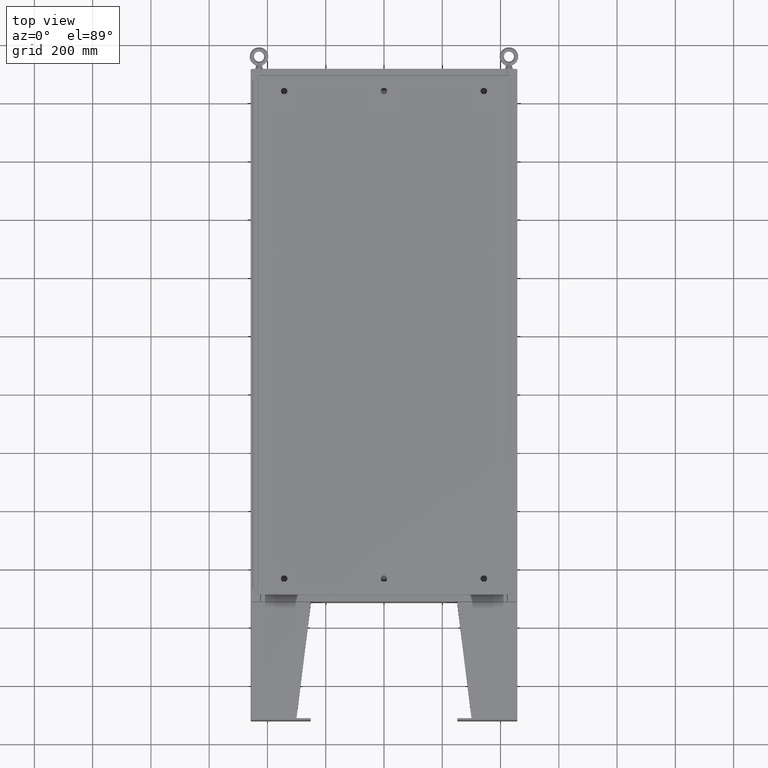
[diagram: clean part render]
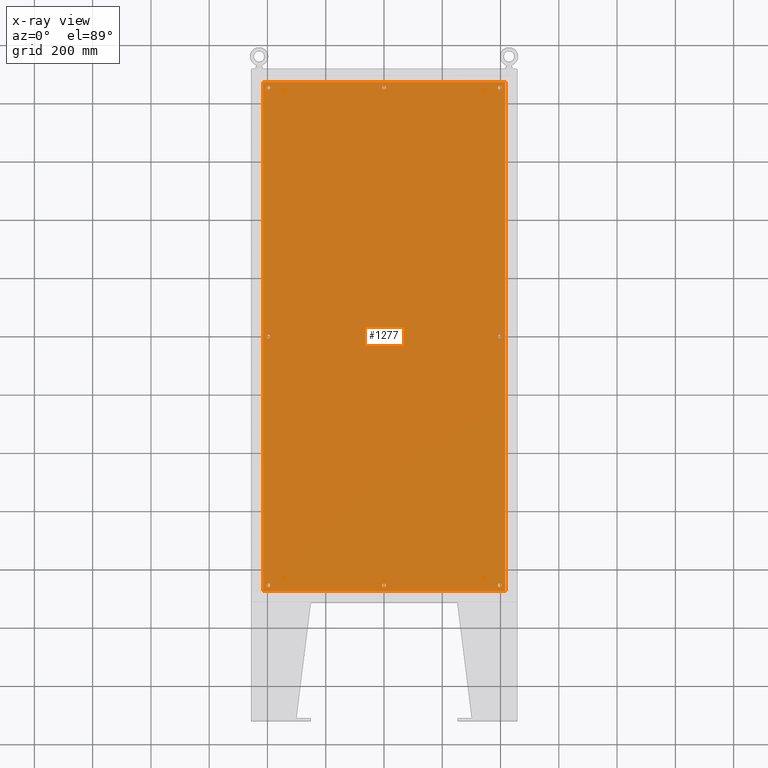
[diagram: x-ray — body ghosted, one internal face saturated and labeled with its STEP entity id]
A machine part, top view, then the same camera in x-ray: the body is ghosted and one INTERNAL B-rep face — a face not visible from any outside direction — is saturated and labeled: STEP entity #1277.
In plain terms, the highlighted planar face has unit normal (0, 0, -1).
Its self-contained STEP definition (entity closure, byte-faithful):
#70 = VECTOR ( 'NONE', #18782, 39.37007874015748100 ) ;
#311 = CIRCLE ( 'NONE', #4489, 0.2500000000000008900 ) ;
#694 = ORIENTED_EDGE ( 'NONE', *, *, #8518, .T. ) ;
#1155 = EDGE_CURVE ( 'NONE', #23579, #33029, #3163, .T. ) ;
#1277 = ADVANCED_FACE ( 'NONE', ( #23697, #52458, #9077, #65490, #50764, #36351, #21941, #7407, #63747 ), #50730, .T. ) ;
#1298 = DIRECTION ( 'NONE',  ( -1.000000000000000000, 0.0000000000000000000, 0.0000000000000000000 ) ) ;
#1308 = VERTEX_POINT ( 'NONE', #43369 ) ;
#1620 = DIRECTION ( 'NONE',  ( -0.0000000000000000000, -0.0000000000000000000, 1.000000000000000000 ) ) ;
#1848 = DIRECTION ( 'NONE',  ( -0.0000000000000000000, -0.0000000000000000000, 1.000000000000000000 ) ) ;
#2515 = ORIENTED_EDGE ( 'NONE', *, *, #37120, .T. ) ;
#2758 = CIRCLE ( 'NONE', #60711, 0.2500000000000008900 ) ;
#2787 = EDGE_CURVE ( 'NONE', #63608, #1308, #311, .T. ) ;
#2909 = CARTESIAN_POINT ( 'NONE',  ( -16.38299999999999900, -34.38300000000000300, -0.1040000000000009400 ) ) ;
#2990 = VERTEX_POINT ( 'NONE', #30539 ) ;
#3163 = CIRCLE ( 'NONE', #28610, 0.2500000000000008900 ) ;
#3190 = EDGE_CURVE ( 'NONE', #19703, #23617, #63455, .T. ) ;
#3490 = CARTESIAN_POINT ( 'NONE',  ( -15.37500000000000900, -33.62500000000000000, -0.1039999999999999800 ) ) ;
#3848 = ORIENTED_EDGE ( 'NONE', *, *, #42043, .T. ) ;
#3898 = DIRECTION ( 'NONE',  ( -1.000000000000000000, 0.0000000000000000000, 0.0000000000000000000 ) ) ;
#4059 = VERTEX_POINT ( 'NONE', #52948 ) ;
#4401 = CARTESIAN_POINT ( 'NONE',  ( -15.62500000000000900, -33.62500000000000000, -0.1039999999999999800 ) ) ;
#4489 = AXIS2_PLACEMENT_3D ( 'NONE', #31790, #64514, #64273 ) ;
#4592 = CARTESIAN_POINT ( 'NONE',  ( 15.87500000000000700, 2.997136362123522700E-015, -0.1039999999999999800 ) ) ;
#4673 = EDGE_CURVE ( 'NONE', #8976, #36304, #2758, .T. ) ;
#4709 = CARTESIAN_POINT ( 'NONE',  ( 15.37500000000000900, 33.62500000000000000, -0.1039999999999999800 ) ) ;
#5720 = CARTESIAN_POINT ( 'NONE',  ( 0.0000000000000000000, -33.62500000000000000, -0.1039999999999999800 ) ) ;
#5984 = EDGE_CURVE ( 'NONE', #26965, #12709, #40003, .T. ) ;
#6129 = CARTESIAN_POINT ( 'NONE',  ( -16.50000000000000000, -34.38300000000000300, -0.1040000000000009400 ) ) ;
#6296 = CIRCLE ( 'NONE', #11796, 0.2500000000000011700 ) ;
#6845 = AXIS2_PLACEMENT_3D ( 'NONE', #43387, #10823, #48841 ) ;
#7100 = EDGE_CURVE ( 'NONE', #4059, #15674, #66453, .T. ) ;
#7407 = FACE_BOUND ( 'NONE', #58598, .T. ) ;
#7636 = LINE ( 'NONE', #6129, #20437 ) ;
#7820 = DIRECTION ( 'NONE',  ( -0.0000000000000000000, -0.0000000000000000000, 1.000000000000000000 ) ) ;
#8518 = EDGE_CURVE ( 'NONE', #30129, #48071, #37346, .T. ) ;
#8697 = CIRCLE ( 'NONE', #6845, 0.2500000000000011700 ) ;
#8976 = VERTEX_POINT ( 'NONE', #20074 ) ;
#9077 = FACE_BOUND ( 'NONE', #58117, .T. ) ;
#10137 = CARTESIAN_POINT ( 'NONE',  ( 0.0000000000000000000, 33.62500000000000000, -0.1039999999999999800 ) ) ;
#10752 = CARTESIAN_POINT ( 'NONE',  ( -15.62500000000000900, -33.62500000000000000, -0.1039999999999999800 ) ) ;
#10823 = DIRECTION ( 'NONE',  ( -0.0000000000000000000, -0.0000000000000000000, 1.000000000000000000 ) ) ;
#11138 = DIRECTION ( 'NONE',  ( -1.000000000000000000, 0.0000000000000000000, 0.0000000000000000000 ) ) ;
#11766 = CARTESIAN_POINT ( 'NONE',  ( -0.2500000000000011700, -33.62500000000000000, -0.1039999999999999800 ) ) ;
#11796 = AXIS2_PLACEMENT_3D ( 'NONE', #5720, #43678, #11138 ) ;
#12592 = EDGE_CURVE ( 'NONE', #23617, #19703, #32644, .T. ) ;
#12709 = VERTEX_POINT ( 'NONE', #61997 ) ;
#13439 = CARTESIAN_POINT ( 'NONE',  ( -15.87500000000000700, -7.992687152332741600E-016, -0.1039999999999999800 ) ) ;
#13609 = EDGE_CURVE ( 'NONE', #65050, #48066, #40063, .T. ) ;
#14582 = DIRECTION ( 'NONE',  ( -0.0000000000000000000, -0.0000000000000000000, 1.000000000000000000 ) ) ;
#15286 = ORIENTED_EDGE ( 'NONE', *, *, #3190, .T. ) ;
#15618 = DIRECTION ( 'NONE',  ( -1.000000000000000000, 0.0000000000000000000, 0.0000000000000000000 ) ) ;
#15674 = VERTEX_POINT ( 'NONE', #50652 ) ;
#15706 = DIRECTION ( 'NONE',  ( -0.0000000000000000000, -0.0000000000000000000, 1.000000000000000000 ) ) ;
#17757 = ORIENTED_EDGE ( 'NONE', *, *, #29721, .T. ) ;
#18000 = CARTESIAN_POINT ( 'NONE',  ( -15.62500000000000500, -8.298848852119578500E-016, -0.1039999999999999800 ) ) ;
#18040 = DIRECTION ( 'NONE',  ( -1.000000000000000000, 0.0000000000000000000, 0.0000000000000000000 ) ) ;
#18782 = DIRECTION ( 'NONE',  ( 0.0000000000000000000, 1.000000000000000000, 0.0000000000000000000 ) ) ;
#19264 = ORIENTED_EDGE ( 'NONE', *, *, #63053, .F. ) ;
#19502 = AXIS2_PLACEMENT_3D ( 'NONE', #21498, #1848, #18040 ) ;
#19610 = EDGE_LOOP ( 'NONE', ( #43507, #53714 ) ) ;
#19703 = VERTEX_POINT ( 'NONE', #36072 ) ;
#20074 = CARTESIAN_POINT ( 'NONE',  ( -15.37500000000000500, -8.298848852119578500E-016, -0.1039999999999999800 ) ) ;
#20437 = VECTOR ( 'NONE', #66014, 39.37007874015748100 ) ;
#21470 = CARTESIAN_POINT ( 'NONE',  ( 15.37500000000000500, 3.027752532102206500E-015, -0.1039999999999999800 ) ) ;
#21498 = CARTESIAN_POINT ( 'NONE',  ( 15.62500000000000900, -33.62500000000000000, -0.1039999999999999800 ) ) ;
#21603 = ORIENTED_EDGE ( 'NONE', *, *, #13609, .F. ) ;
#21941 = FACE_BOUND ( 'NONE', #31119, .T. ) ;
#22030 = CIRCLE ( 'NONE', #27236, 0.2499999999999998600 ) ;
#22185 = EDGE_CURVE ( 'NONE', #15674, #4059, #57764, .T. ) ;
#22867 = EDGE_LOOP ( 'NONE', ( #40692, #38128 ) ) ;
#23579 = VERTEX_POINT ( 'NONE', #4592 ) ;
#23617 = VERTEX_POINT ( 'NONE', #3490 ) ;
#23633 = AXIS2_PLACEMENT_3D ( 'NONE', #10752, #14582, #48239 ) ;
#23697 = FACE_BOUND ( 'NONE', #45779, .T. ) ;
#23723 = VECTOR ( 'NONE', #35689, 39.37007874015748100 ) ;
#24720 = EDGE_LOOP ( 'NONE', ( #34048, #15286 ) ) ;
#24852 = CARTESIAN_POINT ( 'NONE',  ( -16.38299999999999900, 34.38300000000000300, -0.1040000000000009100 ) ) ;
#25291 = EDGE_CURVE ( 'NONE', #36304, #8976, #46277, .T. ) ;
#26023 = DIRECTION ( 'NONE',  ( -0.0000000000000000000, -0.0000000000000000000, 1.000000000000000000 ) ) ;
#26965 = VERTEX_POINT ( 'NONE', #38248 ) ;
#27025 = ORIENTED_EDGE ( 'NONE', *, *, #61450, .T. ) ;
#27052 = CARTESIAN_POINT ( 'NONE',  ( 15.62500000000000900, 33.62500000000000000, -0.1039999999999999800 ) ) ;
#27236 = AXIS2_PLACEMENT_3D ( 'NONE', #10137, #48178, #15618 ) ;
#28039 = CIRCLE ( 'NONE', #66547, 0.2500000000000008900 ) ;
#28610 = AXIS2_PLACEMENT_3D ( 'NONE', #56728, #56712, #56561 ) ;
#29721 = EDGE_CURVE ( 'NONE', #33029, #23579, #28039, .T. ) ;
#29983 = CARTESIAN_POINT ( 'NONE',  ( 16.38299999999999600, -34.38300000000000300, -0.1040000000000009100 ) ) ;
#30128 = EDGE_CURVE ( 'NONE', #12709, #26965, #22030, .T. ) ;
#30129 = VERTEX_POINT ( 'NONE', #4709 ) ;
#30298 = VERTEX_POINT ( 'NONE', #11766 ) ;
#30539 = CARTESIAN_POINT ( 'NONE',  ( 0.2500000000000011700, -33.62500000000000000, -0.1039999999999999800 ) ) ;
#30604 = DIRECTION ( 'NONE',  ( -0.0000000000000000000, -0.0000000000000000000, 1.000000000000000000 ) ) ;
#30631 = ORIENTED_EDGE ( 'NONE', *, *, #66869, .T. ) ;
#31009 = LINE ( 'NONE', #31044, #58209 ) ;
#31044 = CARTESIAN_POINT ( 'NONE',  ( -16.38299999999999900, 34.38300000000000300, -0.1040000000000009100 ) ) ;
#31119 = EDGE_LOOP ( 'NONE', ( #3848, #694 ) ) ;
#31790 = CARTESIAN_POINT ( 'NONE',  ( -15.62500000000001100, 33.62500000000000000, -0.1039999999999999800 ) ) ;
#32376 = CIRCLE ( 'NONE', #56746, 0.2499999999999987000 ) ;
#32500 = DIRECTION ( 'NONE',  ( -1.000000000000000000, 0.0000000000000000000, 0.0000000000000000000 ) ) ;
#32644 = CIRCLE ( 'NONE', #23633, 0.2499999999999987000 ) ;
#33029 = VERTEX_POINT ( 'NONE', #21470 ) ;
#33172 = CARTESIAN_POINT ( 'NONE',  ( 15.87500000000000700, 33.62500000000000000, -0.1039999999999999800 ) ) ;
#33734 = ORIENTED_EDGE ( 'NONE', *, *, #2787, .T. ) ;
#34048 = ORIENTED_EDGE ( 'NONE', *, *, #12592, .T. ) ;
#34283 = CARTESIAN_POINT ( 'NONE',  ( 15.62500000000000500, 2.997136362123522700E-015, -0.1039999999999999800 ) ) ;
#34485 = ORIENTED_EDGE ( 'NONE', *, *, #25291, .T. ) ;
#35048 = CIRCLE ( 'NONE', #67405, 0.2500000000000008900 ) ;
#35602 = ORIENTED_EDGE ( 'NONE', *, *, #1155, .T. ) ;
#35689 = DIRECTION ( 'NONE',  ( -1.000000000000000000, -0.0000000000000000000, -0.0000000000000000000 ) ) ;
#36072 = CARTESIAN_POINT ( 'NONE',  ( -15.87500000000000700, -33.62500000000000000, -0.1039999999999999800 ) ) ;
#36304 = VERTEX_POINT ( 'NONE', #13439 ) ;
#36351 = FACE_BOUND ( 'NONE', #22867, .T. ) ;
#37120 = EDGE_CURVE ( 'NONE', #30298, #2990, #6296, .T. ) ;
#37346 = CIRCLE ( 'NONE', #41507, 0.2499999999999987000 ) ;
#38128 = ORIENTED_EDGE ( 'NONE', *, *, #7100, .T. ) ;
#38248 = CARTESIAN_POINT ( 'NONE',  ( 0.2499999999999998600, 33.62500000000000000, -0.1039999999999999800 ) ) ;
#38259 = DIRECTION ( 'NONE',  ( -0.0000000000000000000, -0.0000000000000000000, 1.000000000000000000 ) ) ;
#38583 = CARTESIAN_POINT ( 'NONE',  ( -15.87500000000001100, 33.62500000000000000, -0.1039999999999999800 ) ) ;
#39674 = DIRECTION ( 'NONE',  ( -1.000000000000000000, 0.0000000000000000000, 0.0000000000000000000 ) ) ;
#40003 = CIRCLE ( 'NONE', #47448, 0.2499999999999998600 ) ;
#40063 = LINE ( 'NONE', #51666, #70 ) ;
#40692 = ORIENTED_EDGE ( 'NONE', *, *, #22185, .T. ) ;
#41295 = ORIENTED_EDGE ( 'NONE', *, *, #4673, .T. ) ;
#41507 = AXIS2_PLACEMENT_3D ( 'NONE', #70269, #15706, #69520 ) ;
#41719 = ORIENTED_EDGE ( 'NONE', *, *, #45680, .F. ) ;
#41817 = DIRECTION ( 'NONE',  ( -0.0000000000000000000, -0.0000000000000000000, 1.000000000000000000 ) ) ;
#41877 = DIRECTION ( 'NONE',  ( 0.0000000000000000000, -1.000000000000000000, 0.0000000000000000000 ) ) ;
#42043 = EDGE_CURVE ( 'NONE', #48071, #30129, #32376, .T. ) ;
#43369 = CARTESIAN_POINT ( 'NONE',  ( -15.37500000000000900, 33.62500000000000000, -0.1039999999999999800 ) ) ;
#43387 = CARTESIAN_POINT ( 'NONE',  ( 0.0000000000000000000, -33.62500000000000000, -0.1039999999999999800 ) ) ;
#43507 = ORIENTED_EDGE ( 'NONE', *, *, #5984, .T. ) ;
#43678 = DIRECTION ( 'NONE',  ( -0.0000000000000000000, -0.0000000000000000000, 1.000000000000000000 ) ) ;
#44578 = CARTESIAN_POINT ( 'NONE',  ( 0.0000000000000000000, 0.0000000000000000000, -0.1039999999999999800 ) ) ;
#44905 = EDGE_LOOP ( 'NONE', ( #19264, #41719, #62249, #21603 ) ) ;
#45680 = EDGE_CURVE ( 'NONE', #66105, #54518, #31009, .T. ) ;
#45688 = CARTESIAN_POINT ( 'NONE',  ( 0.0000000000000000000, 33.62500000000000000, -0.1039999999999999800 ) ) ;
#45779 = EDGE_LOOP ( 'NONE', ( #30631, #2515 ) ) ;
#46277 = CIRCLE ( 'NONE', #46884, 0.2500000000000008900 ) ;
#46662 = DIRECTION ( 'NONE',  ( -0.0000000000000000000, -0.0000000000000000000, 1.000000000000000000 ) ) ;
#46884 = AXIS2_PLACEMENT_3D ( 'NONE', #70771, #38259, #57903 ) ;
#47448 = AXIS2_PLACEMENT_3D ( 'NONE', #45688, #41817, #69633 ) ;
#48066 = VERTEX_POINT ( 'NONE', #65894 ) ;
#48071 = VERTEX_POINT ( 'NONE', #33172 ) ;
#48178 = DIRECTION ( 'NONE',  ( -0.0000000000000000000, -0.0000000000000000000, 1.000000000000000000 ) ) ;
#48239 = DIRECTION ( 'NONE',  ( -1.000000000000000000, 0.0000000000000000000, 0.0000000000000000000 ) ) ;
#48841 = DIRECTION ( 'NONE',  ( -1.000000000000000000, 0.0000000000000000000, 0.0000000000000000000 ) ) ;
#50652 = CARTESIAN_POINT ( 'NONE',  ( 15.87500000000000700, -33.62500000000000000, -0.1039999999999999800 ) ) ;
#50730 = PLANE ( 'NONE',  #68915 ) ;
#50764 = FACE_BOUND ( 'NONE', #24720, .T. ) ;
#51651 = DIRECTION ( 'NONE',  ( -1.000000000000000000, 0.0000000000000000000, -0.0000000000000000000 ) ) ;
#51666 = CARTESIAN_POINT ( 'NONE',  ( 16.38299999999999600, -34.38300000000000300, -0.1040000000000009100 ) ) ;
#52458 = FACE_BOUND ( 'NONE', #19610, .T. ) ;
#52742 = DIRECTION ( 'NONE',  ( 0.0000000000000000000, 0.0000000000000000000, -1.000000000000000000 ) ) ;
#52948 = CARTESIAN_POINT ( 'NONE',  ( 15.37500000000000900, -33.62500000000000000, -0.1039999999999999800 ) ) ;
#53714 = ORIENTED_EDGE ( 'NONE', *, *, #30128, .T. ) ;
#54518 = VERTEX_POINT ( 'NONE', #2909 ) ;
#55326 = AXIS2_PLACEMENT_3D ( 'NONE', #68281, #46662, #1298 ) ;
#56561 = DIRECTION ( 'NONE',  ( -1.000000000000000000, 0.0000000000000000000, 0.0000000000000000000 ) ) ;
#56712 = DIRECTION ( 'NONE',  ( -0.0000000000000000000, -0.0000000000000000000, 1.000000000000000000 ) ) ;
#56728 = CARTESIAN_POINT ( 'NONE',  ( 15.62500000000000500, 2.997136362123522700E-015, -0.1039999999999999800 ) ) ;
#56746 = AXIS2_PLACEMENT_3D ( 'NONE', #27052, #65241, #32500 ) ;
#57764 = CIRCLE ( 'NONE', #19502, 0.2499999999999987000 ) ;
#57903 = DIRECTION ( 'NONE',  ( -1.000000000000000000, 0.0000000000000000000, 0.0000000000000000000 ) ) ;
#58117 = EDGE_LOOP ( 'NONE', ( #35602, #17757 ) ) ;
#58209 = VECTOR ( 'NONE', #41877, 39.37007874015748100 ) ;
#58565 = CARTESIAN_POINT ( 'NONE',  ( -15.62500000000001100, 33.62500000000000000, -0.1039999999999999800 ) ) ;
#58598 = EDGE_LOOP ( 'NONE', ( #27025, #33734 ) ) ;
#60570 = DIRECTION ( 'NONE',  ( -1.000000000000000000, 0.0000000000000000000, 0.0000000000000000000 ) ) ;
#60711 = AXIS2_PLACEMENT_3D ( 'NONE', #18000, #30604, #3898 ) ;
#61450 = EDGE_CURVE ( 'NONE', #1308, #63608, #35048, .T. ) ;
#61569 = AXIS2_PLACEMENT_3D ( 'NONE', #4401, #7820, #60570 ) ;
#61997 = CARTESIAN_POINT ( 'NONE',  ( -0.2499999999999998600, 33.62500000000000000, -0.1039999999999999800 ) ) ;
#62249 = ORIENTED_EDGE ( 'NONE', *, *, #64250, .F. ) ;
#63053 = EDGE_CURVE ( 'NONE', #54518, #65050, #7636, .T. ) ;
#63455 = CIRCLE ( 'NONE', #61569, 0.2499999999999987000 ) ;
#63608 = VERTEX_POINT ( 'NONE', #38583 ) ;
#63747 = FACE_OUTER_BOUND ( 'NONE', #44905, .T. ) ;
#64187 = DIRECTION ( 'NONE',  ( -1.000000000000000000, 0.0000000000000000000, 0.0000000000000000000 ) ) ;
#64250 = EDGE_CURVE ( 'NONE', #48066, #66105, #65526, .T. ) ;
#64273 = DIRECTION ( 'NONE',  ( -1.000000000000000000, 0.0000000000000000000, 0.0000000000000000000 ) ) ;
#64514 = DIRECTION ( 'NONE',  ( -0.0000000000000000000, -0.0000000000000000000, 1.000000000000000000 ) ) ;
#65050 = VERTEX_POINT ( 'NONE', #29983 ) ;
#65241 = DIRECTION ( 'NONE',  ( -0.0000000000000000000, -0.0000000000000000000, 1.000000000000000000 ) ) ;
#65490 = FACE_BOUND ( 'NONE', #70069, .T. ) ;
#65526 = LINE ( 'NONE', #68491, #23723 ) ;
#65894 = CARTESIAN_POINT ( 'NONE',  ( 16.38299999999999600, 34.38300000000000300, -0.1040000000000009100 ) ) ;
#66014 = DIRECTION ( 'NONE',  ( 1.000000000000000000, -0.0000000000000000000, -0.0000000000000000000 ) ) ;
#66105 = VERTEX_POINT ( 'NONE', #24852 ) ;
#66453 = CIRCLE ( 'NONE', #55326, 0.2499999999999987000 ) ;
#66547 = AXIS2_PLACEMENT_3D ( 'NONE', #34283, #1620, #39674 ) ;
#66869 = EDGE_CURVE ( 'NONE', #2990, #30298, #8697, .T. ) ;
#67405 = AXIS2_PLACEMENT_3D ( 'NONE', #58565, #26023, #64187 ) ;
#68281 = CARTESIAN_POINT ( 'NONE',  ( 15.62500000000000900, -33.62500000000000000, -0.1039999999999999800 ) ) ;
#68491 = CARTESIAN_POINT ( 'NONE',  ( 16.49999999999999600, 34.38299999999999600, -0.1040000000000009400 ) ) ;
#68915 = AXIS2_PLACEMENT_3D ( 'NONE', #44578, #52742, #51651 ) ;
#69520 = DIRECTION ( 'NONE',  ( -1.000000000000000000, 0.0000000000000000000, 0.0000000000000000000 ) ) ;
#69633 = DIRECTION ( 'NONE',  ( -1.000000000000000000, 0.0000000000000000000, 0.0000000000000000000 ) ) ;
#70069 = EDGE_LOOP ( 'NONE', ( #41295, #34485 ) ) ;
#70269 = CARTESIAN_POINT ( 'NONE',  ( 15.62500000000000900, 33.62500000000000000, -0.1039999999999999800 ) ) ;
#70771 = CARTESIAN_POINT ( 'NONE',  ( -15.62500000000000500, -8.298848852119578500E-016, -0.1039999999999999800 ) ) ;